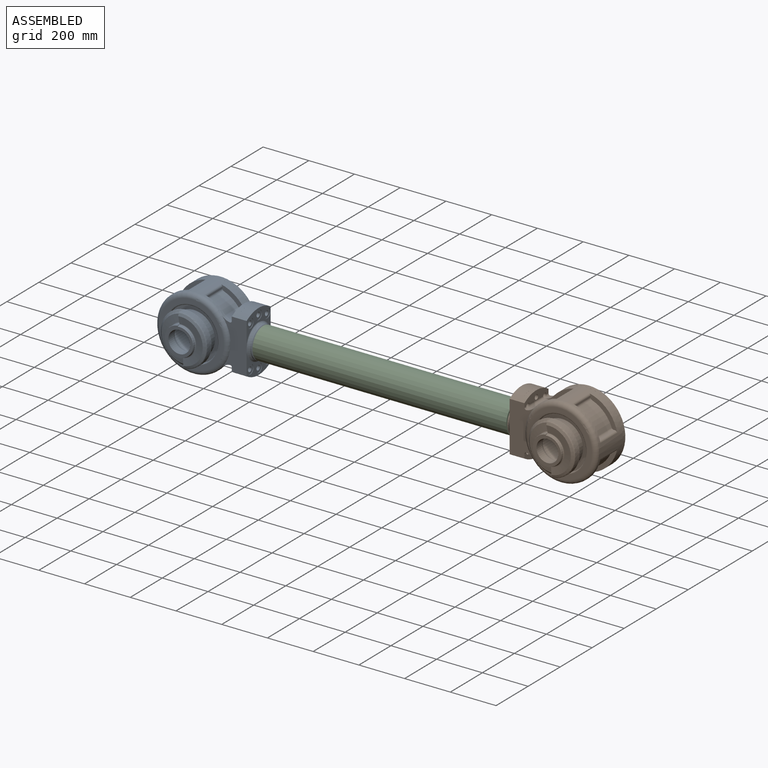
[diagram: assembled view]
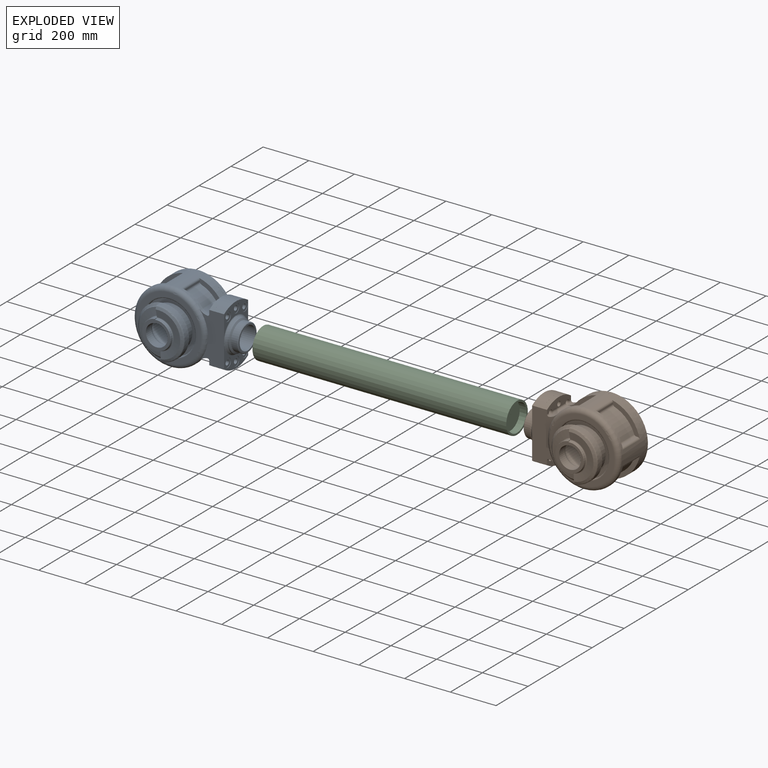
[diagram: exploded view]
GUIDED TOUR — MATED ASSEMBLY WITH SUBASSEMBLIES (Onshape document e0d1b59df1c4db4a15af49fb, AutoMate assembly e0d1b59df1c4db4a15af49fb_293eb3403b7e5a9b0ba6f898_ea851c5b34a008ae9504a71b_default)

This assembly has 13 component occurrences arranged in 3 top-level units: 1 individual components plus 2 subassemblies (S0, S1). The tour has two levels: first the top level, where each subassembly is treated as one rigid unit; then each subassembly is toured internally in its own section (nesting deeper than one subassembly level is flattened into its subassembly's section).

Components are labeled P0..P12 across the whole record; subassembly units are labeled S0..S1. A mate is a constraint between two units; its type names the relative motion it leaves free:
  CYLINDRICAL — leaves both rotation about and translation along the listed axis free,
  PLANAR — leaves sliding in the plane through the listed point (normal = the listed direction) and rotation about that normal free.
Axis/direction vectors are unit vectors and 'through' points are millimeter coordinates, both in the assembly's world frame.

TOP-LEVEL MATES (between units; each subassembly's internal mates are listed in its own section)
  1. PLANAR "Planar 2": S1 <-> P4, direction (-1.000, 0.000, 0.000) through (1665.70, 108.16, 194.84) mm
  2. CYLINDRICAL "Cylindrical 1": P4 <-> S0, axis (1.000, 0.000, 0.000) through (600.70, 108.16, 194.84) mm
  3. PLANAR "Planar 1": P4 <-> S0, direction (-1.000, 0.000, 0.000) through (615.70, 108.16, 194.84) mm
  4. CYLINDRICAL "Cylindrical 2": S1 <-> P4, axis (-1.000, 0.000, 0.000) through (1694.70, 108.16, 194.84) mm

TOP-LEVEL ASSEMBLY ORDER
  1. P4 — the base component [order verified]
  2. S0 [order verified]
  3. S1 [order verified]
(S0, S1 verified with a relaxed clearance tolerance: the source model stores slight part interference there.)
Order-tag legend:
  [order verified] — this step's position reverses a verified removal order: the component was checked to insert without passing through the ones already placed.

Of the 13 component occurrences, 3 carry the full construction recipe — the FeatureScript program that regenerates the part's solid from scratch; the rest are supplied as boundary geometry only. Each toured unit is shown spotlighted twice — assembled, then exploded with a leader line back to its socket (green = recipe-attached component, orange = geometry-only, blue = subassembly unit; the rest desaturated gray).
NOTE — this tour is split across 2 documents so each fits a 32k-token context. This is document 1: the component sections continue in the remaining 1 document, each repeating the header above.
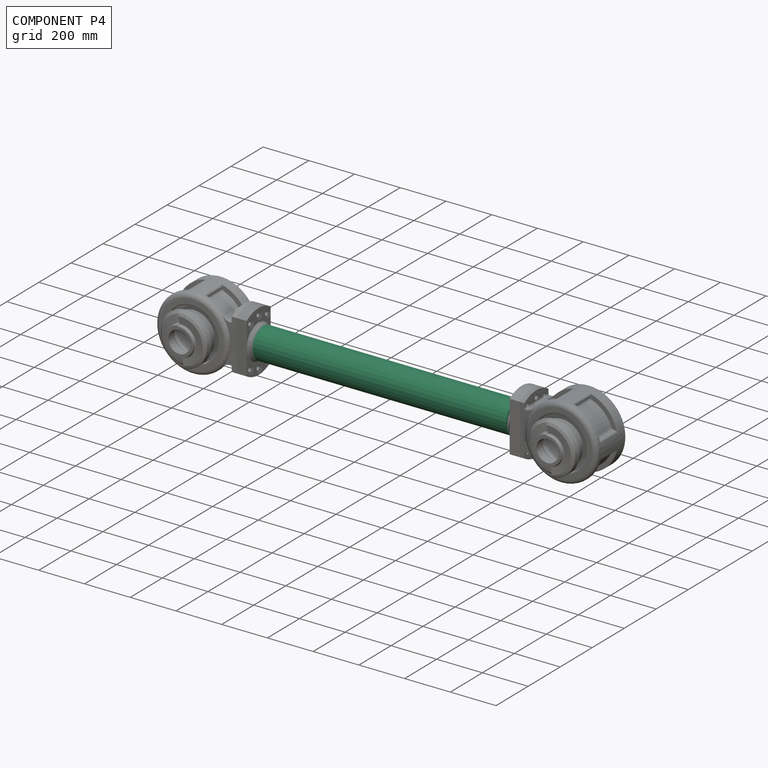
[diagram: component P4 — assembled]
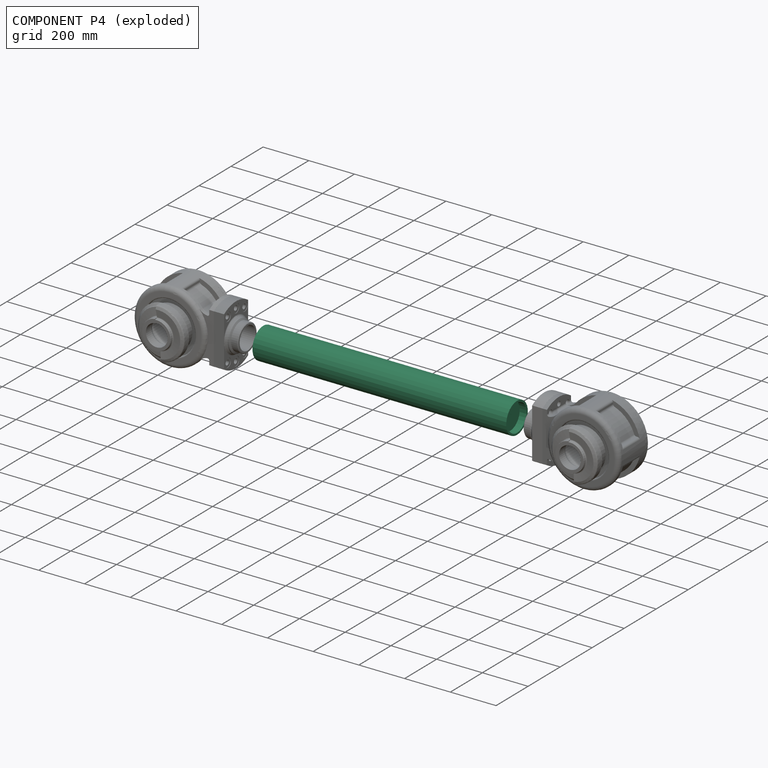
[diagram: component P4 — exploded]
COMPONENT P4 — recipe-attached (CADFS 00546761, mesh-verified: the recipe's output STEP matches this component's geometry to below the mesh-comparison resolution (tessellation chordal tolerance ~1.69 mm)).
Held by: PLANAR mate "Planar 2" to P2; CYLINDRICAL mate "Cylindrical 1" to P0; PLANAR mate "Planar 1" to P0; CYLINDRICAL mate "Cylindrical 2" to P2.
Construction recipe (FeatureScript — the CAD program that rebuilds this solid; sketch coordinates are in the units given by the * unit suffixes, e.g. mm):

FeatureScript 1511;
import(path : "onshape/std/geometry.fs", version : "1511.0");
import(path : "onshape/std/common.fs", version : "1511.0");
const mm = millimeter;
const VERTEX = EntityType.VERTEX;
const EDGE = EntityType.EDGE;
const FACE = EntityType.FACE;
const BODY = EntityType.BODY;
function v(x, y){return vector(x, y);}
function OD(order){return orderDisambiguation(order);}
function OSD(set){return originalSetDisambiguation(set);}
function TD(topology){return topologyDisambiguation(topology);}
function TDD(query){return trueDependencyDisambiguation(query);}
function sQuery(a, b, c) {return sketchEntityQuery(a, b, c);}

annotation { "Feature Type Name" : "Feature", "Feature Type Description" : "" }
export const myFeature = defineFeature(function(context is Context, id is Id, definition is map)
    precondition{}
    {
        {
            var Q0;
            Q0=qCreatedBy(makeId("Front.planeOp"),FACE);
            var sketch = newSketch(context, id + "F0", { "sketchPlane" : qUnion([Q0])});
            skLineSegment(sketch, "E0", {"start": v(0, 672.07) * mm, "end": v(0, -680.1) * mm, "construction": true});
            skLineSegment(sketch, "E1", {"start": v(67.5, 555) * mm, "end": v(67.5, -555) * mm});
            skLineSegment(sketch, "E2", {"start": v(59.5, 555) * mm, "end": v(59.5, 525) * mm});
            skLineSegment(sketch, "E3", {"start": v(59.5, 555) * mm, "end": v(67.5, 555) * mm});
            skLineSegment(sketch, "E4.0", {"start": v(0, 525) * mm, "end": v(59.5, 525) * mm});
            skLineSegment(sketch, "E5", {"start": v(67.5, -555) * mm, "end": v(59.5, -555) * mm});
            skLineSegment(sketch, "E6.0", {"start": v(59.5, -525) * mm, "end": v(0, -525) * mm});
            skLineSegment(sketch, "E7.0", {"start": v(0, 519) * mm, "end": v(59.5, 519) * mm});
            skLineSegment(sketch, "E8.0", {"start": v(59.5, -519) * mm, "end": v(0, -519) * mm});
            skLineSegment(sketch, "E9.trimOffspring", {"start": v(59.5, -525) * mm, "end": v(59.5, -555) * mm});
            skPoint(sketch, "E10.orphan", {"position": v(0, 555) * mm});
            skLineSegment(sketch, "E11.trimOffspring", {"start": v(59.5, 519) * mm, "end": v(59.5, -519) * mm});
            skLineSegment(sketch, "E12", {"start": v(0, 525) * mm, "end": v(0, 519) * mm});
            skLineSegment(sketch, "E13", {"start": v(0, -519) * mm, "end": v(0, -525) * mm});
            skSolve(sketch);
        }
        {
            var Q0;
            Q0=makeQuery(id+"F0.imprint","IMPRINT",FACE,{"disambiguationData":[TD([[makeQuery(id+"F0.imprint","IMPRINT",EDGE,{"derivedFrom":sQuery(id+"F0.wireOp",EDGE,"E1")}),-1.0]])]});
            var Q1;
            Q1=sQuery(id+"F0.wireOp",EDGE,"E0");
            revolve(context, id + "F1", {"entities" : qUnion([Q0]), "axis" : qUnion([Q1]), "revolveType" : RevolveType.FULL});
        }
    });
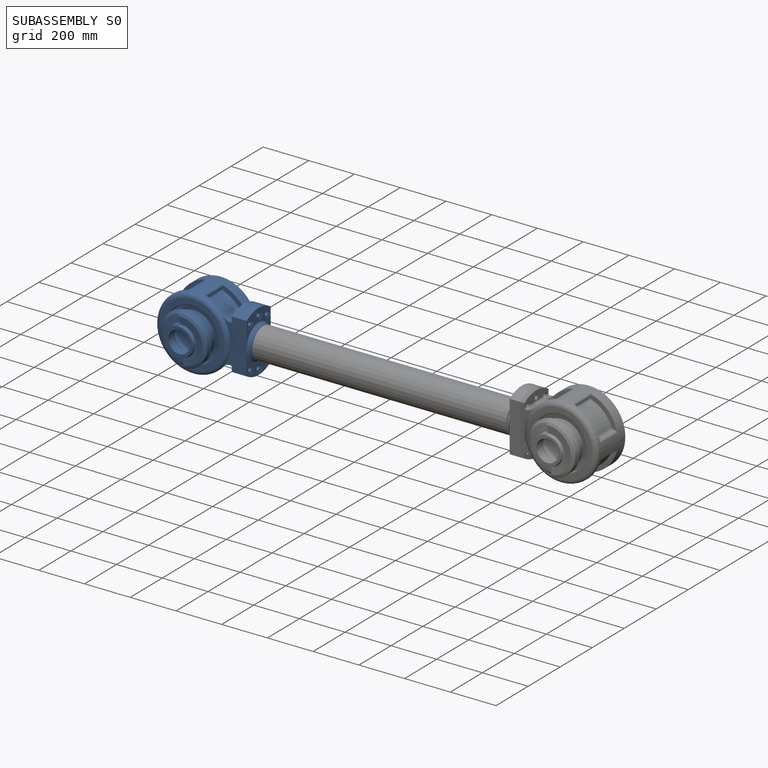
[diagram: subassembly S0 — assembled]
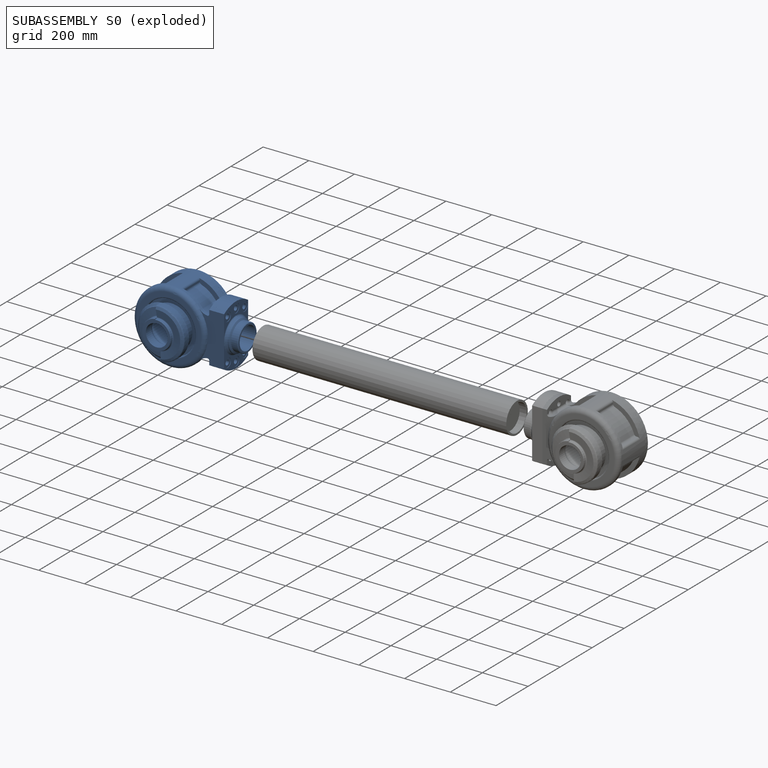
[diagram: subassembly S0 — exploded]
SUBASSEMBLY S0 — 6 components (P0, P1, P5, P9, P10, P12), of which 1 recipe-attached; toured below.
Held by: CYLINDRICAL mate "Cylindrical 1" to P4; PLANAR mate "Planar 1" to P4.
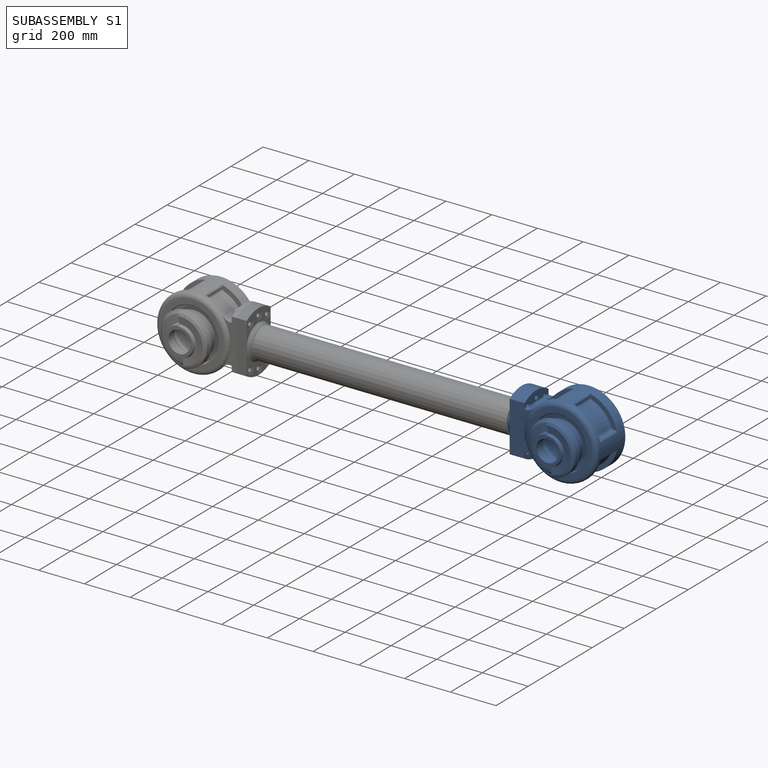
[diagram: subassembly S1 — assembled]
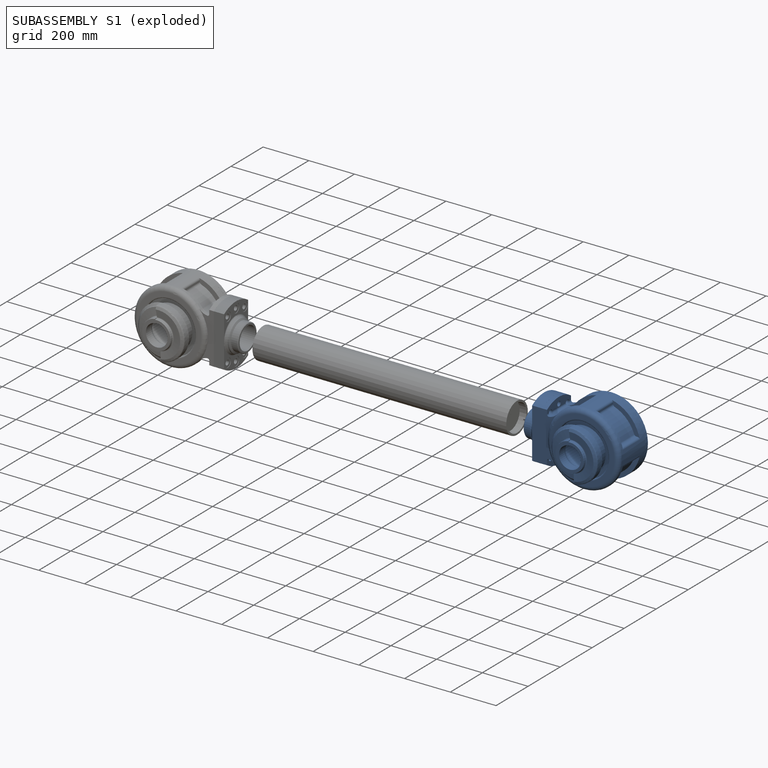
[diagram: subassembly S1 — exploded]
SUBASSEMBLY S1 — 6 components (P2, P3, P6, P7, P8, P11), of which 1 recipe-attached; toured below.
Held by: PLANAR mate "Planar 2" to P4; CYLINDRICAL mate "Cylindrical 2" to P4.
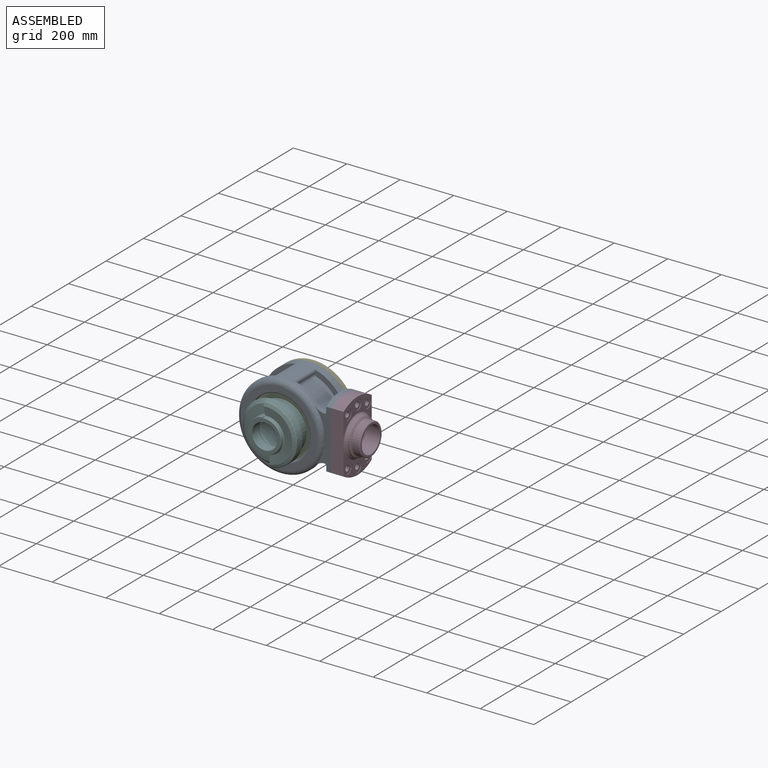
[diagram: subassembly S0 — assembled view]
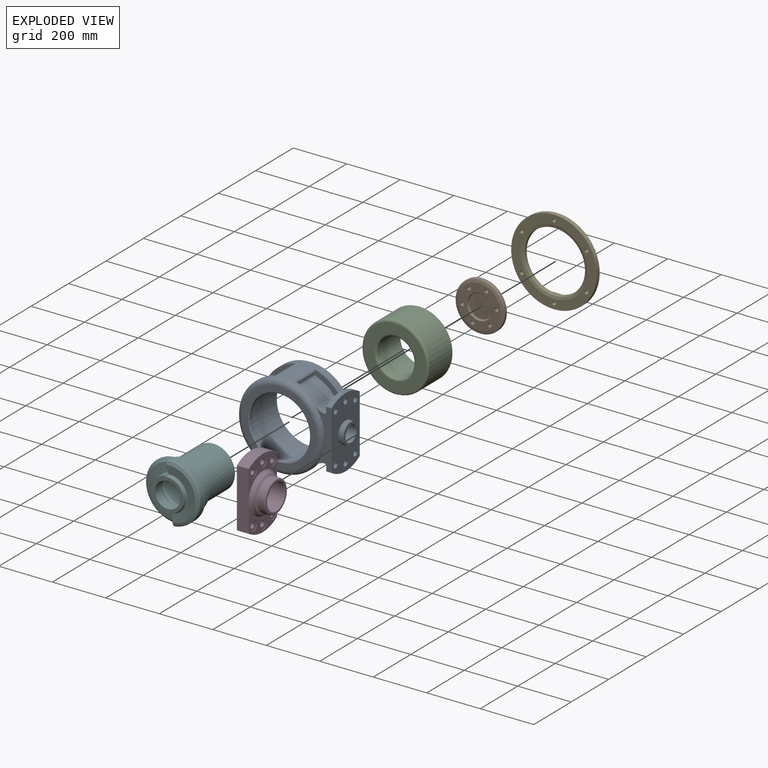
[diagram: subassembly S0 — exploded view]
SUBASSEMBLY S0 TOUR — 6 components, shown here in isolation at its own camera.

INTERNAL MATES
  1. CYLINDRICAL "Cylindrical 3": P12 <-> P1, axis (0.000, -1.000, 0.000) through (335.70, 187.87, 194.84) mm
  2. PLANAR "Planar 3": P1 <-> P12, direction (0.000, -1.000, 0.000) through (335.70, 190.37, 194.84) mm
  3. CYLINDRICAL "Cylindrical 4": P12 <-> P1, axis (0.000, 1.000, 0.000) through (296.91, 175.87, 247.00) mm
  4. PLANAR "Planar 4": P10 <-> P0, direction (0.000, -1.000, 0.000) through (335.70, 183.16, 194.84) mm
  5. PLANAR "Planar 1": P5 <-> P0, direction (0.000, -1.000, 0.000) through (335.70, 33.16, 194.84) mm
  6. CYLINDRICAL "Cylindrical 1": P0 <-> P5, axis (0.000, 1.000, 0.000) through (335.70, 110.16, 194.84) mm
  7. CYLINDRICAL "Cylindrical 2": P12 <-> P5, axis (0.000, -1.000, 0.000) through (335.70, 112.67, 194.84) mm
  8. PLANAR "Planar 2": P12 <-> P5, direction (0.000, -1.000, 0.000) through (335.70, 33.16, 194.84) mm
  9. CYLINDRICAL "Cylindrical 7": P0 <-> P9, axis (1.000, 0.000, 0.000) through (508.20, 55.66, 103.91) mm
  10. CYLINDRICAL "Cylindrical 5": P10 <-> P0, axis (0.000, -1.000, 0.000) through (335.70, 194.30, 194.84) mm
  11. CYLINDRICAL "Cylindrical 8": P10 <-> P0, axis (0.000, -1.000, 0.000) through (456.94, 191.16, 264.84) mm
  12. CYLINDRICAL "Cylindrical 6": P9 <-> P0, axis (-1.000, 0.000, 0.000) through (534.70, 108.16, 194.84) mm
  13. PLANAR "Planar 5": P0 <-> P9, direction (1.000, 0.000, 0.000) through (520.70, 108.16, 194.84) mm
  14. PLANAR "Planar 5": P0 <-> P9, direction (1.000, 0.000, 0.000) through (520.70, 108.16, 194.84) mm
  15. CYLINDRICAL "Cylindrical 4": P12 <-> P1, axis (0.000, 1.000, 0.000) through (296.91, 175.87, 247.00) mm
  16. PLANAR "Planar 4": P10 <-> P0, direction (0.000, -1.000, 0.000) through (335.70, 183.16, 194.84) mm
  17. CYLINDRICAL "Cylindrical 1": P0 <-> P5, axis (0.000, 1.000, 0.000) through (335.70, 110.16, 194.84) mm
  18. PLANAR "Planar 1": P5 <-> P0, direction (0.000, -1.000, 0.000) through (335.70, 33.16, 194.84) mm
  19. CYLINDRICAL "Cylindrical 3": P12 <-> P1, axis (0.000, -1.000, 0.000) through (335.70, 187.87, 194.84) mm
  20. CYLINDRICAL "Cylindrical 6": P9 <-> P0, axis (-1.000, 0.000, 0.000) through (534.70, 108.16, 194.84) mm
  21. CYLINDRICAL "Cylindrical 5": P10 <-> P0, axis (0.000, -1.000, 0.000) through (335.70, 194.30, 194.84) mm
  22. CYLINDRICAL "Cylindrical 8": P10 <-> P0, axis (0.000, -1.000, 0.000) through (456.94, 191.16, 264.84) mm
  23. PLANAR "Planar 2": P12 <-> P5, direction (0.000, -1.000, 0.000) through (335.70, 33.16, 194.84) mm
  24. CYLINDRICAL "Cylindrical 7": P0 <-> P9, axis (1.000, 0.000, 0.000) through (508.20, 55.66, 103.91) mm
  25. CYLINDRICAL "Cylindrical 2": P12 <-> P5, axis (0.000, -1.000, 0.000) through (335.70, 112.67, 194.84) mm
  26. PLANAR "Planar 3": P1 <-> P12, direction (0.000, -1.000, 0.000) through (335.70, 190.37, 194.84) mm

ASSEMBLY ORDER (within the subassembly)
  1. P0 — the base component [order heuristic]
  2. P5 — core [order heuristic]
  3. P12 — core [order heuristic]
  4. P1 [order verified]
  5. P9 [order verified]
  6. P10 [order verified]
(P1 verified with a relaxed clearance tolerance: the source model stores slight part interference there.)
Order-tag legend:
  [order verified] — this step's position reverses a verified removal order: the component was checked to insert without passing through the ones already placed.
  [order heuristic] — the first 3 components form the assembly's core: parts whose collision-free extraction could not be verified, listed in mate-graph order.
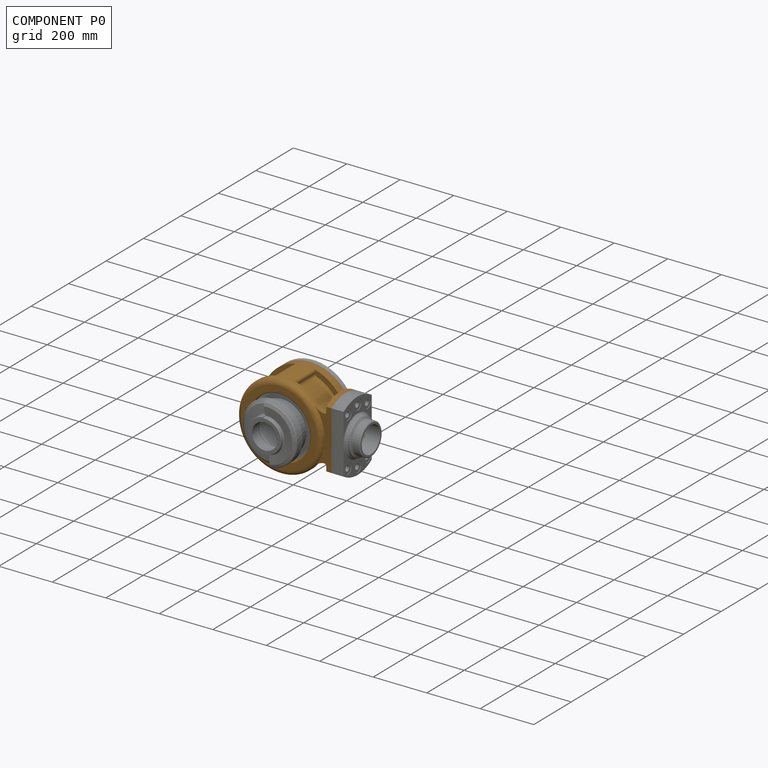
[diagram: component P0 — assembled]
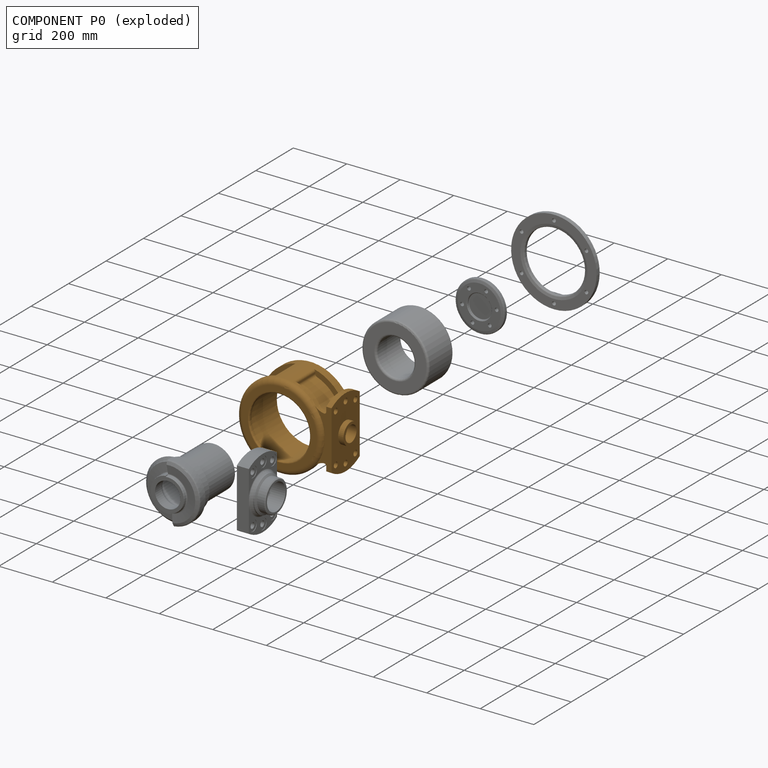
[diagram: component P0 — exploded]
COMPONENT P0 — geometry summary (no construction recipe available for this part):
  bounding box: 378.2 x 346.4 x 165.4 mm
  B-rep topology: 1 solid, 99 faces, 550 edges
  volume: 4830416 mm^3 (22% of its bounding box)
  symmetry: mirror-symmetric across its z mid-plane
Held by: PLANAR mate "Planar 4" to P10; PLANAR mate "Planar 1" to P5; CYLINDRICAL mate "Cylindrical 1" to P5; CYLINDRICAL mate "Cylindrical 7" to P9; CYLINDRICAL mate "Cylindrical 5" to P10; CYLINDRICAL mate "Cylindrical 8" to P10; CYLINDRICAL mate "Cylindrical 6" to P9; PLANAR mate "Planar 5" to P9; PLANAR mate "Planar 5" to P9; PLANAR mate "Planar 4" to P10; CYLINDRICAL mate "Cylindrical 1" to P5; PLANAR mate "Planar 1" to P5; CYLINDRICAL mate "Cylindrical 6" to P9; CYLINDRICAL mate "Cylindrical 5" to P10; CYLINDRICAL mate "Cylindrical 8" to P10; CYLINDRICAL mate "Cylindrical 7" to P9.
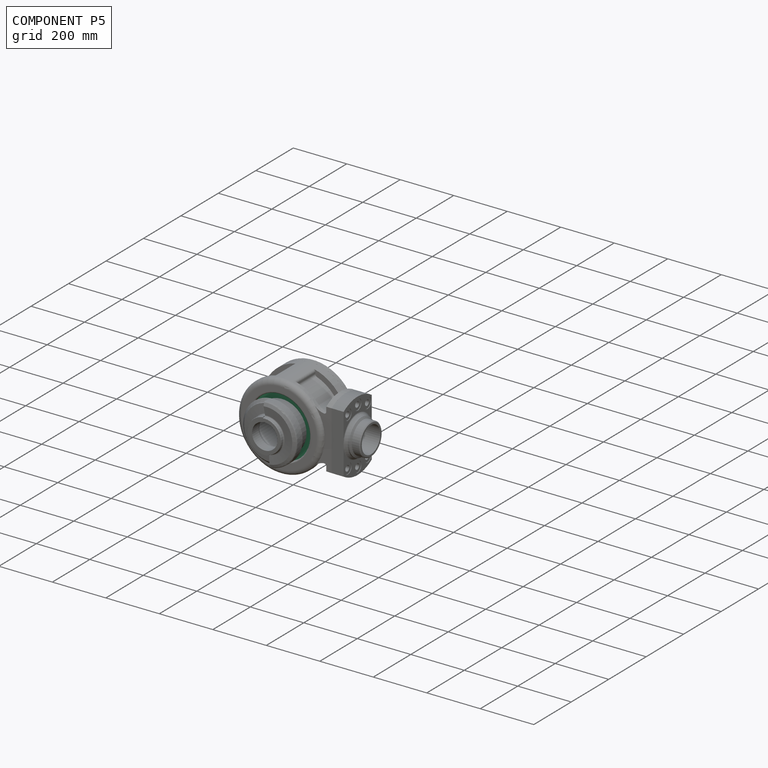
[diagram: component P5 — assembled]
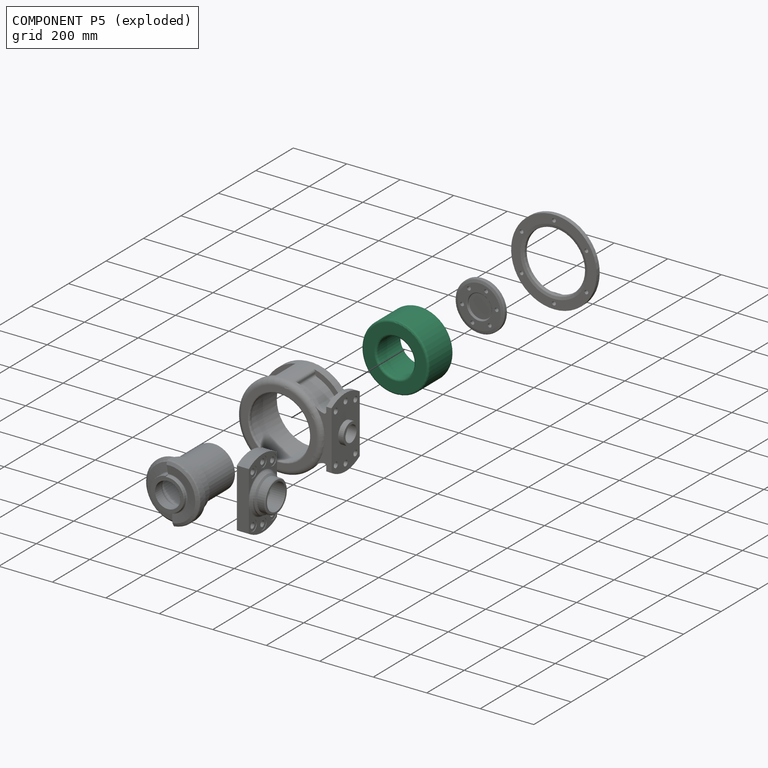
[diagram: component P5 — exploded]
COMPONENT P5 — recipe-attached (CADFS 00546755, mesh-verified: the recipe's output STEP matches this component's geometry to below the mesh-comparison resolution (tessellation chordal tolerance ~0.567 mm)).
Held by: PLANAR mate "Planar 1" to P0; CYLINDRICAL mate "Cylindrical 1" to P0; CYLINDRICAL mate "Cylindrical 2" to P12; PLANAR mate "Planar 2" to P12; CYLINDRICAL mate "Cylindrical 1" to P0; PLANAR mate "Planar 1" to P0; PLANAR mate "Planar 2" to P12; CYLINDRICAL mate "Cylindrical 2" to P12.
Construction recipe (FeatureScript — the CAD program that rebuilds this solid; sketch coordinates are in the units given by the * unit suffixes, e.g. mm):

FeatureScript 1511;
import(path : "onshape/std/geometry.fs", version : "1511.0");
import(path : "onshape/std/common.fs", version : "1511.0");
const mm = millimeter;
const VERTEX = EntityType.VERTEX;
const EDGE = EntityType.EDGE;
const FACE = EntityType.FACE;
const BODY = EntityType.BODY;
function v(x, y){return vector(x, y);}
function OD(order){return orderDisambiguation(order);}
function OSD(set){return originalSetDisambiguation(set);}
function TD(topology){return topologyDisambiguation(topology);}
function TDD(query){return trueDependencyDisambiguation(query);}
function sQuery(a, b, c) {return sketchEntityQuery(a, b, c);}

annotation { "Feature Type Name" : "Feature", "Feature Type Description" : "" }
export const myFeature = defineFeature(function(context is Context, id is Id, definition is map)
    precondition{}
    {
        {
            var Q0;
            Q0=qCreatedBy(makeId("Front.planeOp"),FACE);
            var sketch = newSketch(context, id + "F0", { "sketchPlane" : qUnion([Q0])});
            skCircle(sketch, "E0", {"center": v(0, 0) * mm, "radius": 125 * mm});
            skCircle(sketch, "E1", {"center": v(0, 0) * mm, "radius": 70 * mm});
            skSolve(sketch);
        }
        {
            var Q0;
            Q0=makeQuery(id+"F0.imprint","IMPRINT",FACE,{"disambiguationData":[TD([[makeQuery(id+"F0.imprint","IMPRINT",EDGE,{"derivedFrom":sQuery(id+"F0.wireOp",EDGE,"E0")}),1.0]])]});
            extrude(context, id + "F1", {"entities" : qUnion([Q0]), "endBound" : BoundingType.SYMMETRIC, "depth" : 134 * mm});
        }
        {
            var Q0;
            Q0=makeQuery(id+"F1.opExtrude","CAP_EDGE",EDGE,{"disambiguationData":[OSD([sQuery(id+"F0.wireOp",EDGE,"E0")])],"isStart":false});
            var Q1;
            Q1=makeQuery(id+"F1.opExtrude","CAP_EDGE",EDGE,{"disambiguationData":[OSD([sQuery(id+"F0.wireOp",EDGE,"E0")])],"isStart":true});
            var Q2;
            Q2=makeQuery(id+"F1.opExtrude","CAP_EDGE",EDGE,{"disambiguationData":[OSD([sQuery(id+"F0.wireOp",EDGE,"E1")])],"isStart":true});
            var Q3;
            Q3=makeQuery(id+"F1.opExtrude","CAP_EDGE",EDGE,{"disambiguationData":[OSD([sQuery(id+"F0.wireOp",EDGE,"E1")])],"isStart":false});
            fillet(context, id + "F2", {"entities" : qUnion([Q0, Q1, Q2, Q3]), "radius" : 8 * mm, "tangentPropagation" : true, "allowEdgeOverflow" : false});
        }
    });
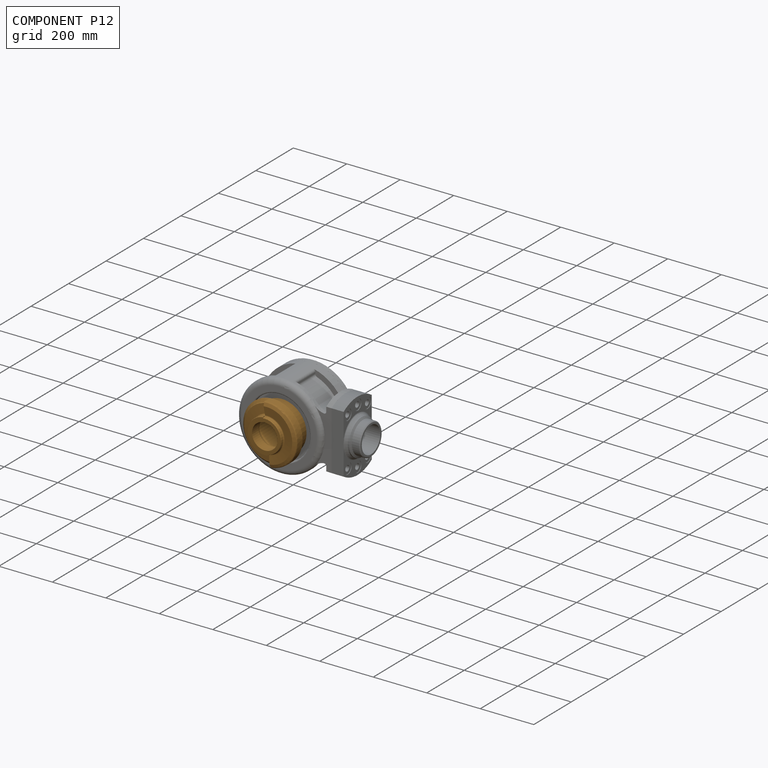
[diagram: component P12 — assembled]
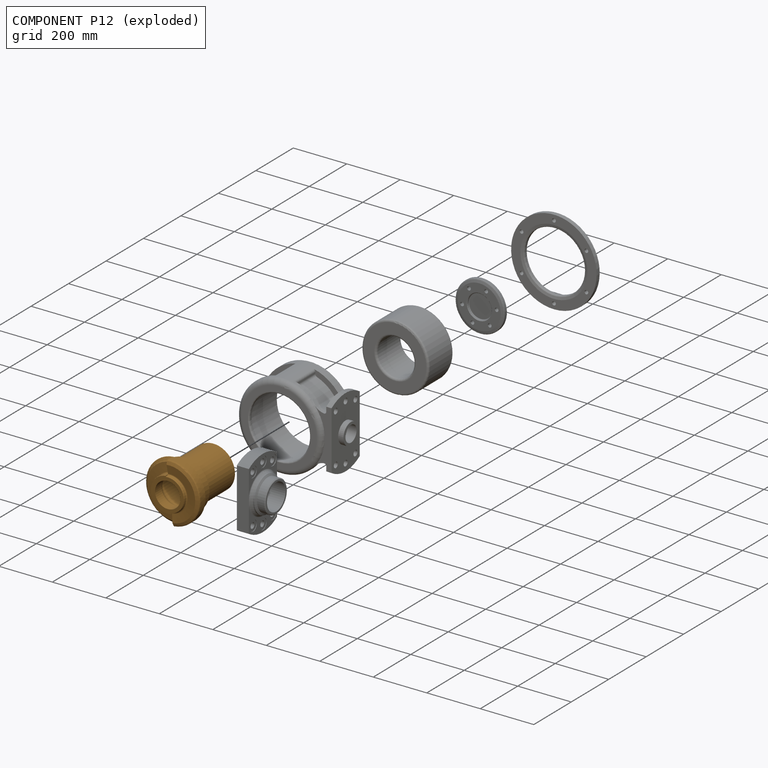
[diagram: component P12 — exploded]
COMPONENT P12 — geometry summary (no construction recipe available for this part):
  bounding box: 250.0 x 242.5 x 242.5 mm
  B-rep topology: 1 solid, 52 faces, 230 edges
  volume: 2941401 mm^3 (20% of its bounding box)
  symmetry: mirror-symmetric across its y mid-plane
Held by: CYLINDRICAL mate "Cylindrical 3" to P1; PLANAR mate "Planar 3" to P1; CYLINDRICAL mate "Cylindrical 4" to P1; CYLINDRICAL mate "Cylindrical 2" to P5; PLANAR mate "Planar 2" to P5; CYLINDRICAL mate "Cylindrical 4" to P1; CYLINDRICAL mate "Cylindrical 3" to P1; PLANAR mate "Planar 2" to P5; CYLINDRICAL mate "Cylindrical 2" to P5; PLANAR mate "Planar 3" to P1.
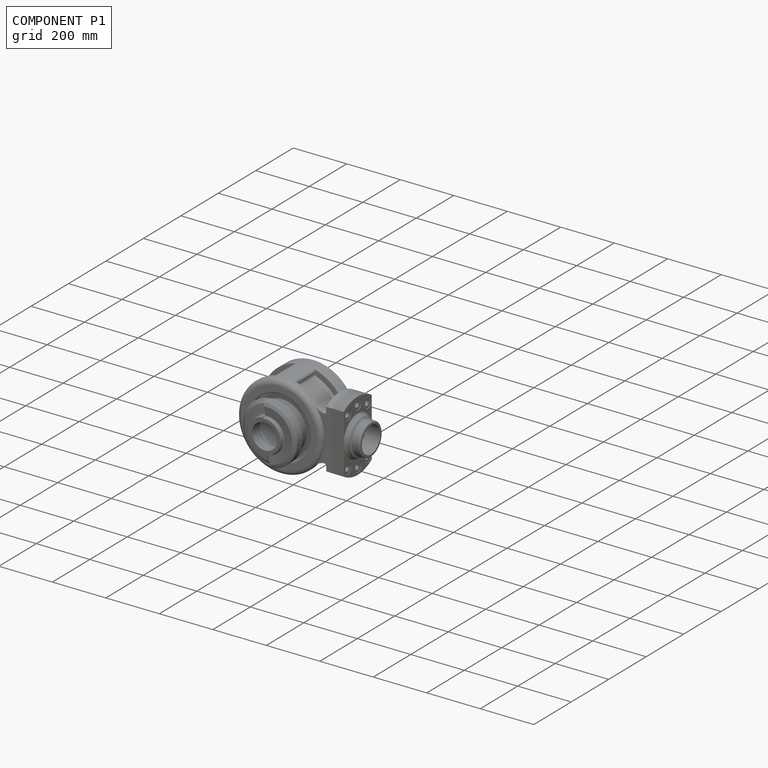
[diagram: component P1 — assembled]
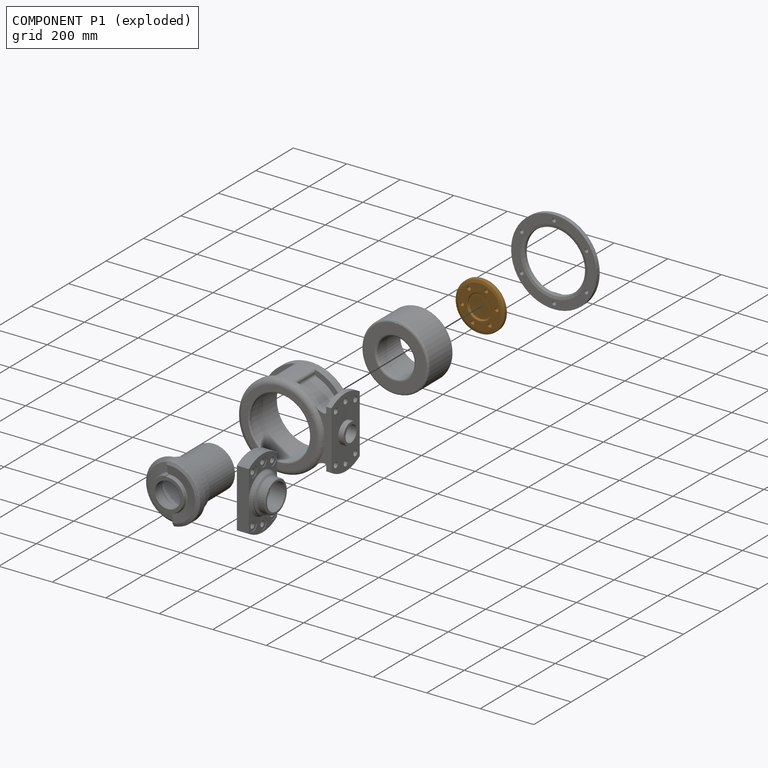
[diagram: component P1 — exploded]
COMPONENT P1 — geometry summary (no construction recipe available for this part):
  bounding box: 199.2 x 199.2 x 16.0 mm
  B-rep topology: 1 solid, 15 faces, 74 edges
  volume: 347738 mm^3 (55% of its bounding box)
  symmetry: 6-fold rotationally symmetric about the z axis; mirror-symmetric across its x mid-plane, y mid-plane
Held by: CYLINDRICAL mate "Cylindrical 3" to P12; PLANAR mate "Planar 3" to P12; CYLINDRICAL mate "Cylindrical 4" to P12; CYLINDRICAL mate "Cylindrical 4" to P12; CYLINDRICAL mate "Cylindrical 3" to P12; PLANAR mate "Planar 3" to P12.
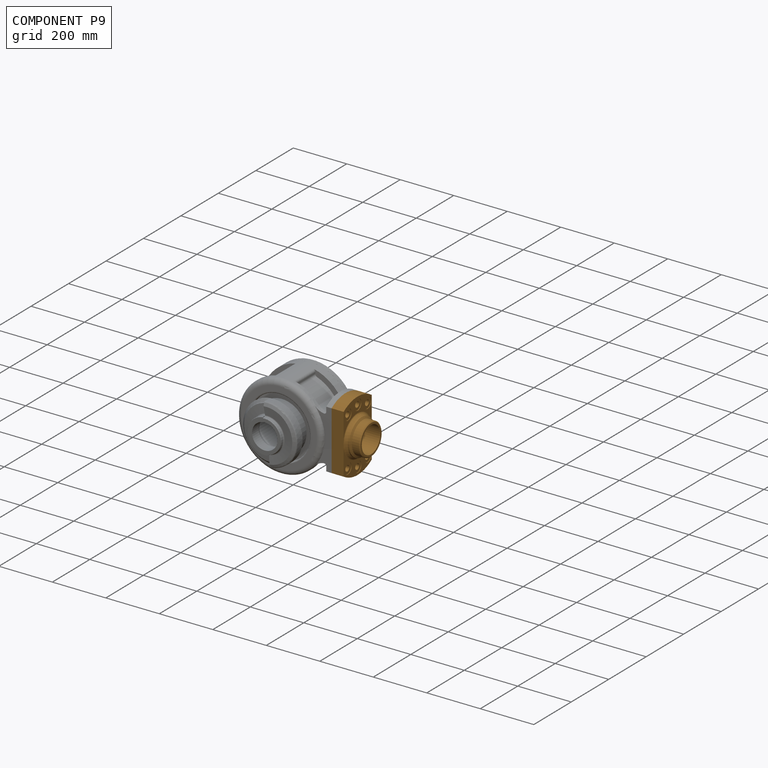
[diagram: component P9 — assembled]
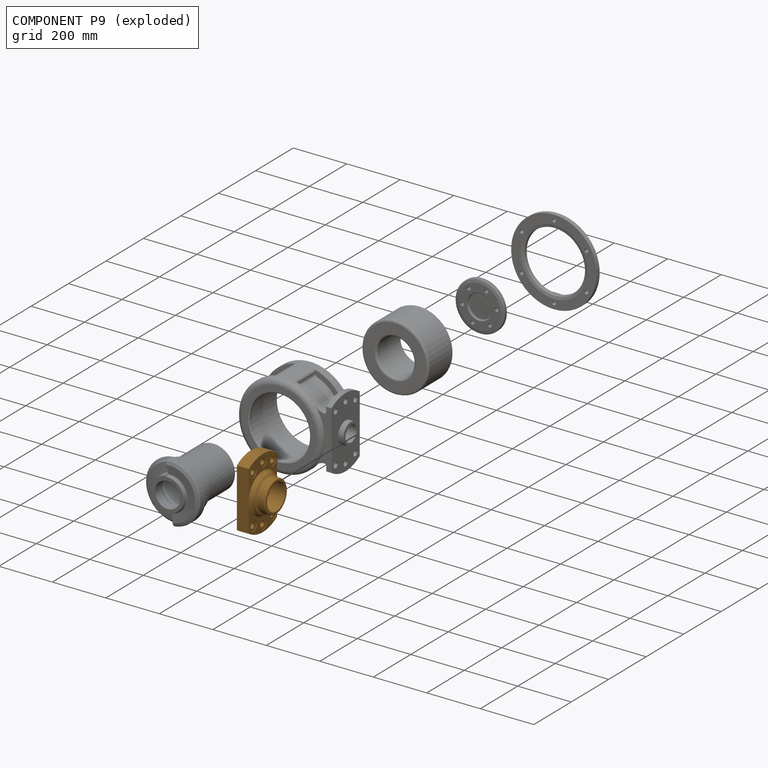
[diagram: component P9 — exploded]
COMPONENT P9 — geometry summary (no construction recipe available for this part):
  bounding box: 265.0 x 166.1 x 95.0 mm
  B-rep topology: 1 solid, 56 faces, 272 edges
  volume: 1452121 mm^3 (35% of its bounding box)
  symmetry: mirror-symmetric across its x mid-plane
Held by: CYLINDRICAL mate "Cylindrical 7" to P0; CYLINDRICAL mate "Cylindrical 6" to P0; PLANAR mate "Planar 5" to P0; PLANAR mate "Planar 5" to P0; CYLINDRICAL mate "Cylindrical 6" to P0; CYLINDRICAL mate "Cylindrical 7" to P0.
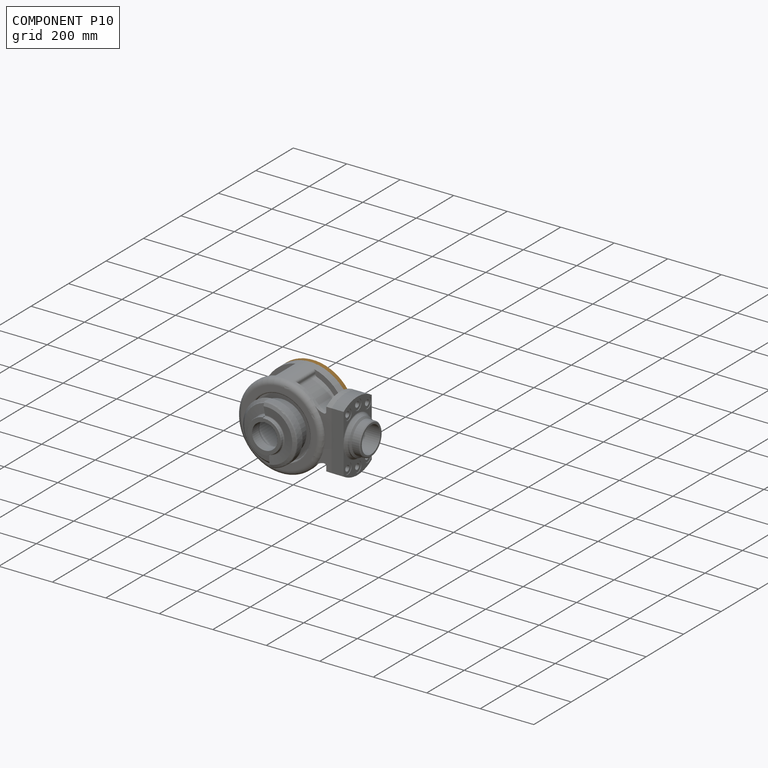
[diagram: component P10 — assembled]
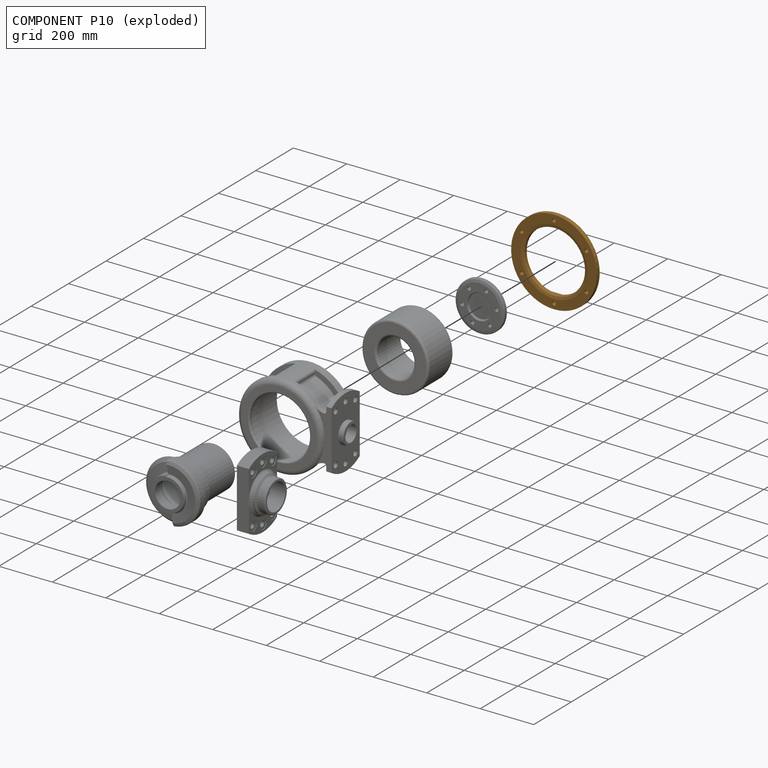
[diagram: component P10 — exploded]
COMPONENT P10 — geometry summary (no construction recipe available for this part):
  bounding box: 320.0 x 320.0 x 16.0 mm
  B-rep topology: 1 solid, 12 faces, 66 edges
  volume: 614707 mm^3 (38% of its bounding box)
  symmetry: 6-fold rotationally symmetric about the z axis; mirror-symmetric across its x mid-plane, y mid-plane
Held by: PLANAR mate "Planar 4" to P0; CYLINDRICAL mate "Cylindrical 5" to P0; CYLINDRICAL mate "Cylindrical 8" to P0; PLANAR mate "Planar 4" to P0; CYLINDRICAL mate "Cylindrical 5" to P0; CYLINDRICAL mate "Cylindrical 8" to P0.
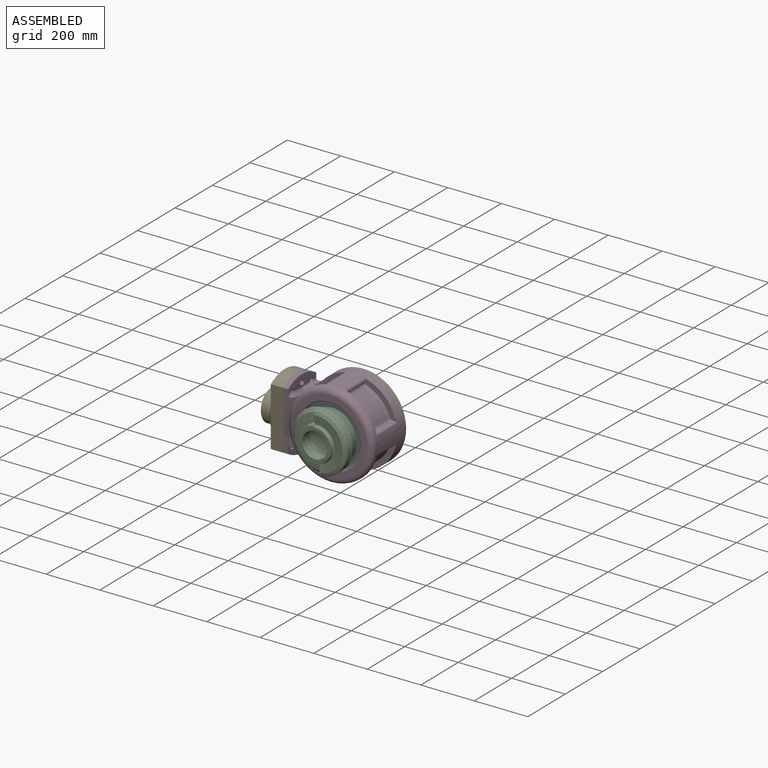
[diagram: subassembly S1 — assembled view]
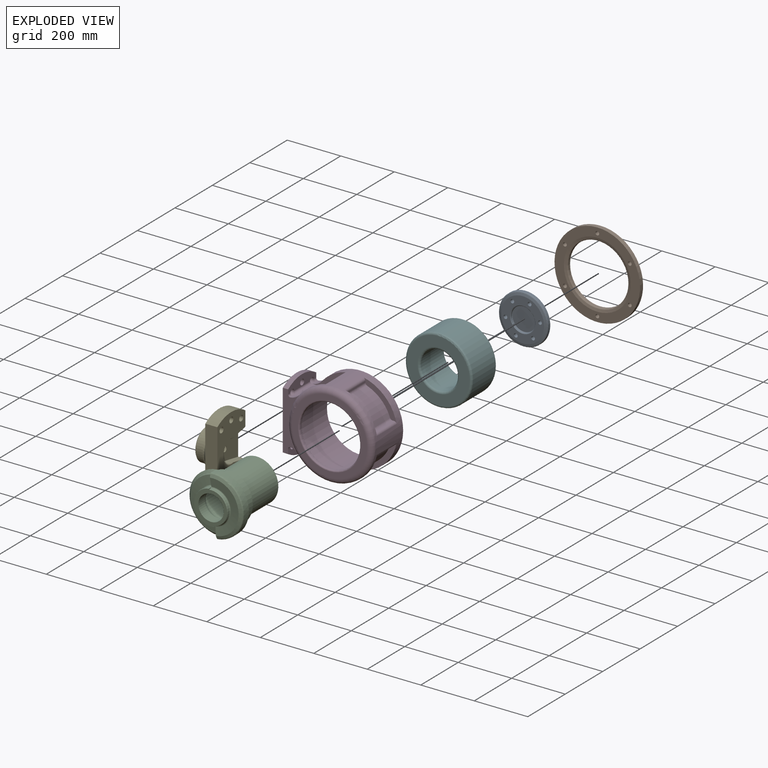
[diagram: subassembly S1 — exploded view]
SUBASSEMBLY S1 TOUR — 6 components, shown here in isolation at its own camera.

INTERNAL MATES
  1. CYLINDRICAL "Cylindrical 3": P6 <-> P2, axis (0.000, -1.000, 0.000) through (1945.70, 187.87, 194.84) mm
  2. PLANAR "Planar 3": P2 <-> P6, direction (0.000, -1.000, 0.000) through (1945.70, 190.37, 194.84) mm
  3. CYLINDRICAL "Cylindrical 4": P6 <-> P2, axis (0.000, 1.000, 0.000) through (1906.91, 175.87, 247.00) mm
  4. PLANAR "Planar 4": P3 <-> P7, direction (0.000, -1.000, 0.000) through (1945.70, 183.16, 194.84) mm
  5. PLANAR "Planar 1": P11 <-> P7, direction (0.000, -1.000, 0.000) through (1945.70, 33.16, 194.84) mm
  6. CYLINDRICAL "Cylindrical 1": P7 <-> P11, axis (0.000, 1.000, 0.000) through (1945.70, 110.16, 194.84) mm
  7. CYLINDRICAL "Cylindrical 2": P6 <-> P11, axis (0.000, -1.000, 0.000) through (1945.70, 112.67, 194.84) mm
  8. PLANAR "Planar 2": P6 <-> P11, direction (0.000, -1.000, 0.000) through (1945.70, 33.16, 194.84) mm
  9. CYLINDRICAL "Cylindrical 7": P7 <-> P8, axis (-1.000, 0.000, 0.000) through (1773.20, 55.66, 285.78) mm
  10. CYLINDRICAL "Cylindrical 5": P3 <-> P7, axis (0.000, -1.000, 0.000) through (1945.70, 194.30, 194.84) mm
  11. CYLINDRICAL "Cylindrical 8": P3 <-> P7, axis (0.000, -1.000, 0.000) through (1824.45, 191.16, 124.84) mm
  12. CYLINDRICAL "Cylindrical 6": P8 <-> P7, axis (1.000, 0.000, 0.000) through (1746.70, 108.16, 194.84) mm
  13. PLANAR "Planar 5": P7 <-> P8, direction (-1.000, 0.000, 0.000) through (1760.70, 108.16, 194.84) mm
  14. CYLINDRICAL "Cylindrical 3": P6 <-> P2, axis (0.000, -1.000, 0.000) through (1945.70, 187.87, 194.84) mm
  15. CYLINDRICAL "Cylindrical 5": P3 <-> P7, axis (0.000, -1.000, 0.000) through (1945.70, 194.30, 194.84) mm
  16. CYLINDRICAL "Cylindrical 6": P8 <-> P7, axis (1.000, 0.000, 0.000) through (1746.70, 108.16, 194.84) mm
  17. PLANAR "Planar 4": P3 <-> P7, direction (0.000, -1.000, 0.000) through (1945.70, 183.16, 194.84) mm
  18. PLANAR "Planar 2": P6 <-> P11, direction (0.000, -1.000, 0.000) through (1945.70, 33.16, 194.84) mm
  19. PLANAR "Planar 3": P2 <-> P6, direction (0.000, -1.000, 0.000) through (1945.70, 190.37, 194.84) mm
  20. CYLINDRICAL "Cylindrical 7": P7 <-> P8, axis (-1.000, 0.000, 0.000) through (1773.20, 55.66, 285.78) mm
  21. CYLINDRICAL "Cylindrical 4": P6 <-> P2, axis (0.000, 1.000, 0.000) through (1906.91, 175.87, 247.00) mm
  22. PLANAR "Planar 1": P11 <-> P7, direction (0.000, -1.000, 0.000) through (1945.70, 33.16, 194.84) mm
  23. CYLINDRICAL "Cylindrical 2": P6 <-> P11, axis (0.000, -1.000, 0.000) through (1945.70, 112.67, 194.84) mm
  24. CYLINDRICAL "Cylindrical 8": P3 <-> P7, axis (0.000, -1.000, 0.000) through (1824.45, 191.16, 124.84) mm
  25. CYLINDRICAL "Cylindrical 1": P7 <-> P11, axis (0.000, 1.000, 0.000) through (1945.70, 110.16, 194.84) mm
  26. PLANAR "Planar 5": P7 <-> P8, direction (-1.000, 0.000, 0.000) through (1760.70, 108.16, 194.84) mm

ASSEMBLY ORDER (within the subassembly)
  1. P7 — the base component [order heuristic]
  2. P11 — core [order heuristic]
  3. P6 — core [order heuristic]
  4. P2 [order verified]
  5. P8 [order verified]
  6. P3 [order verified]
(P2 verified with a relaxed clearance tolerance: the source model stores slight part interference there.)
Order-tag legend:
  [order verified] — this step's position reverses a verified removal order: the component was checked to insert without passing through the ones already placed.
  [order heuristic] — the first 3 components form the assembly's core: parts whose collision-free extraction could not be verified, listed in mate-graph order.
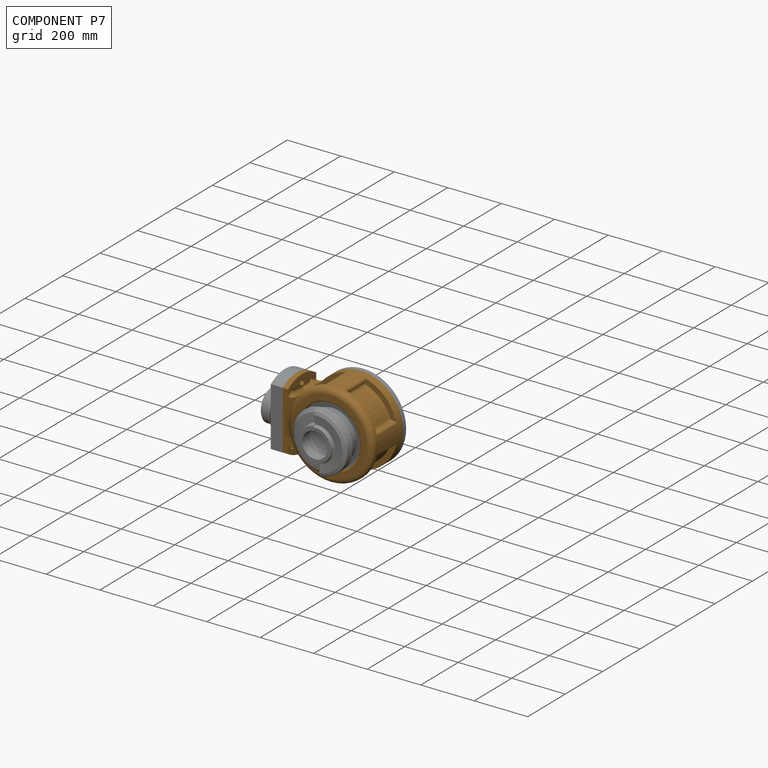
[diagram: component P7 — assembled]
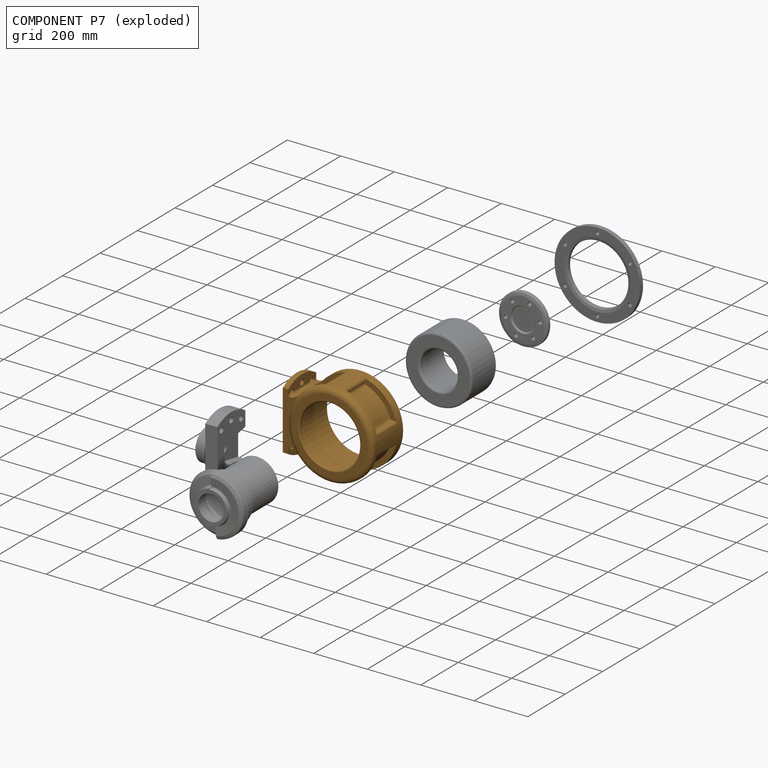
[diagram: component P7 — exploded]
COMPONENT P7 — geometry summary (no construction recipe available for this part):
  bounding box: 378.2 x 346.4 x 165.4 mm
  B-rep topology: 1 solid, 99 faces, 550 edges
  volume: 4830416 mm^3 (22% of its bounding box)
  symmetry: mirror-symmetric across its z mid-plane
Held by: PLANAR mate "Planar 4" to P3; PLANAR mate "Planar 1" to P11; CYLINDRICAL mate "Cylindrical 1" to P11; CYLINDRICAL mate "Cylindrical 7" to P8; CYLINDRICAL mate "Cylindrical 5" to P3; CYLINDRICAL mate "Cylindrical 8" to P3; CYLINDRICAL mate "Cylindrical 6" to P8; PLANAR mate "Planar 5" to P8; CYLINDRICAL mate "Cylindrical 5" to P3; CYLINDRICAL mate "Cylindrical 6" to P8; PLANAR mate "Planar 4" to P3; CYLINDRICAL mate "Cylindrical 7" to P8; PLANAR mate "Planar 1" to P11; CYLINDRICAL mate "Cylindrical 8" to P3; CYLINDRICAL mate "Cylindrical 1" to P11; PLANAR mate "Planar 5" to P8.
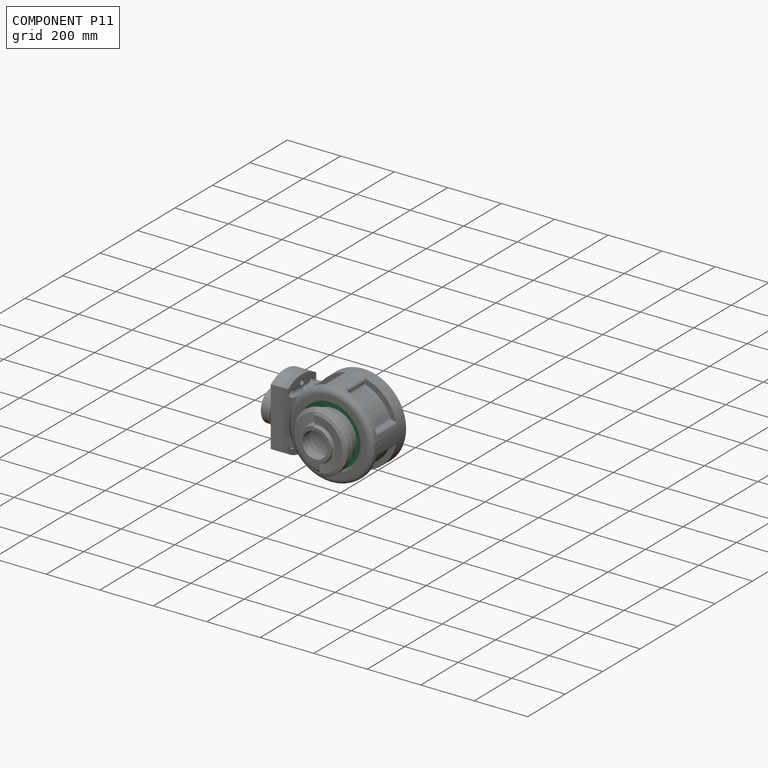
[diagram: component P11 — assembled]
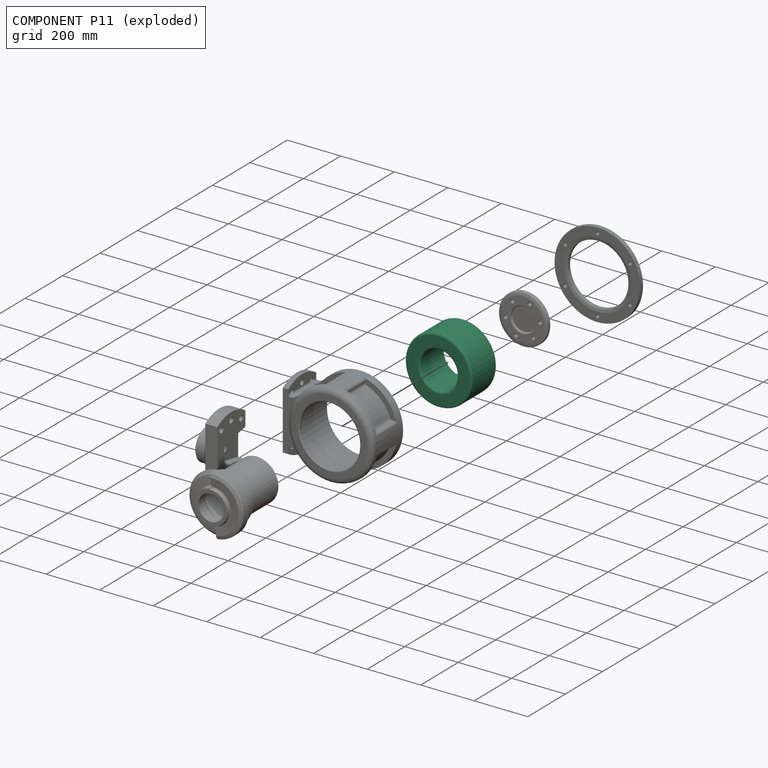
[diagram: component P11 — exploded]
COMPONENT P11 — recipe-attached (CADFS 00546755, mesh-verified: the recipe's output STEP matches this component's geometry to below the mesh-comparison resolution (tessellation chordal tolerance ~0.567 mm)).
Held by: PLANAR mate "Planar 1" to P7; CYLINDRICAL mate "Cylindrical 1" to P7; CYLINDRICAL mate "Cylindrical 2" to P6; PLANAR mate "Planar 2" to P6; PLANAR mate "Planar 2" to P6; PLANAR mate "Planar 1" to P7; CYLINDRICAL mate "Cylindrical 2" to P6; CYLINDRICAL mate "Cylindrical 1" to P7.
Construction recipe (FeatureScript — the CAD program that rebuilds this solid; sketch coordinates are in the units given by the * unit suffixes, e.g. mm):

FeatureScript 1511;
import(path : "onshape/std/geometry.fs", version : "1511.0");
import(path : "onshape/std/common.fs", version : "1511.0");
const mm = millimeter;
const VERTEX = EntityType.VERTEX;
const EDGE = EntityType.EDGE;
const FACE = EntityType.FACE;
const BODY = EntityType.BODY;
function v(x, y){return vector(x, y);}
function OD(order){return orderDisambiguation(order);}
function OSD(set){return originalSetDisambiguation(set);}
function TD(topology){return topologyDisambiguation(topology);}
function TDD(query){return trueDependencyDisambiguation(query);}
function sQuery(a, b, c) {return sketchEntityQuery(a, b, c);}

annotation { "Feature Type Name" : "Feature", "Feature Type Description" : "" }
export const myFeature = defineFeature(function(context is Context, id is Id, definition is map)
    precondition{}
    {
        {
            var Q0;
            Q0=qCreatedBy(makeId("Front.planeOp"),FACE);
            var sketch = newSketch(context, id + "F0", { "sketchPlane" : qUnion([Q0])});
            skCircle(sketch, "E0", {"center": v(0, 0) * mm, "radius": 125 * mm});
            skCircle(sketch, "E1", {"center": v(0, 0) * mm, "radius": 70 * mm});
            skSolve(sketch);
        }
        {
            var Q0;
            Q0=makeQuery(id+"F0.imprint","IMPRINT",FACE,{"disambiguationData":[TD([[makeQuery(id+"F0.imprint","IMPRINT",EDGE,{"derivedFrom":sQuery(id+"F0.wireOp",EDGE,"E0")}),1.0]])]});
            extrude(context, id + "F1", {"entities" : qUnion([Q0]), "endBound" : BoundingType.SYMMETRIC, "depth" : 134 * mm});
        }
        {
            var Q0;
            Q0=makeQuery(id+"F1.opExtrude","CAP_EDGE",EDGE,{"disambiguationData":[OSD([sQuery(id+"F0.wireOp",EDGE,"E0")])],"isStart":false});
            var Q1;
            Q1=makeQuery(id+"F1.opExtrude","CAP_EDGE",EDGE,{"disambiguationData":[OSD([sQuery(id+"F0.wireOp",EDGE,"E0")])],"isStart":true});
            var Q2;
            Q2=makeQuery(id+"F1.opExtrude","CAP_EDGE",EDGE,{"disambiguationData":[OSD([sQuery(id+"F0.wireOp",EDGE,"E1")])],"isStart":true});
            var Q3;
            Q3=makeQuery(id+"F1.opExtrude","CAP_EDGE",EDGE,{"disambiguationData":[OSD([sQuery(id+"F0.wireOp",EDGE,"E1")])],"isStart":false});
            fillet(context, id + "F2", {"entities" : qUnion([Q0, Q1, Q2, Q3]), "radius" : 8 * mm, "tangentPropagation" : true, "allowEdgeOverflow" : false});
        }
    });
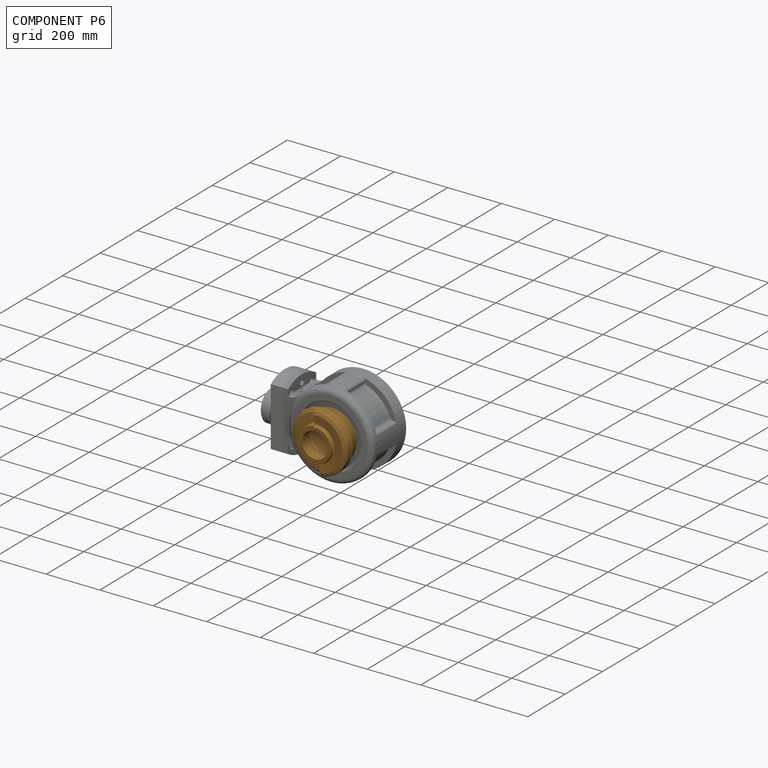
[diagram: component P6 — assembled]
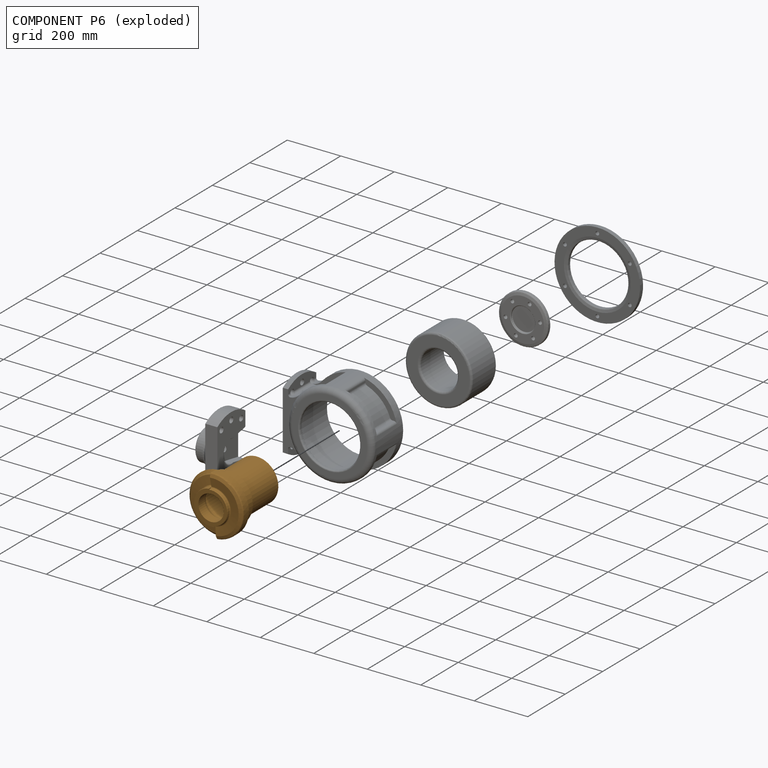
[diagram: component P6 — exploded]
COMPONENT P6 — geometry summary (no construction recipe available for this part):
  bounding box: 250.0 x 242.5 x 242.5 mm
  B-rep topology: 1 solid, 52 faces, 230 edges
  volume: 2941401 mm^3 (20% of its bounding box)
  symmetry: mirror-symmetric across its y mid-plane
Held by: CYLINDRICAL mate "Cylindrical 3" to P2; PLANAR mate "Planar 3" to P2; CYLINDRICAL mate "Cylindrical 4" to P2; CYLINDRICAL mate "Cylindrical 2" to P11; PLANAR mate "Planar 2" to P11; CYLINDRICAL mate "Cylindrical 3" to P2; PLANAR mate "Planar 2" to P11; PLANAR mate "Planar 3" to P2; CYLINDRICAL mate "Cylindrical 4" to P2; CYLINDRICAL mate "Cylindrical 2" to P11.
